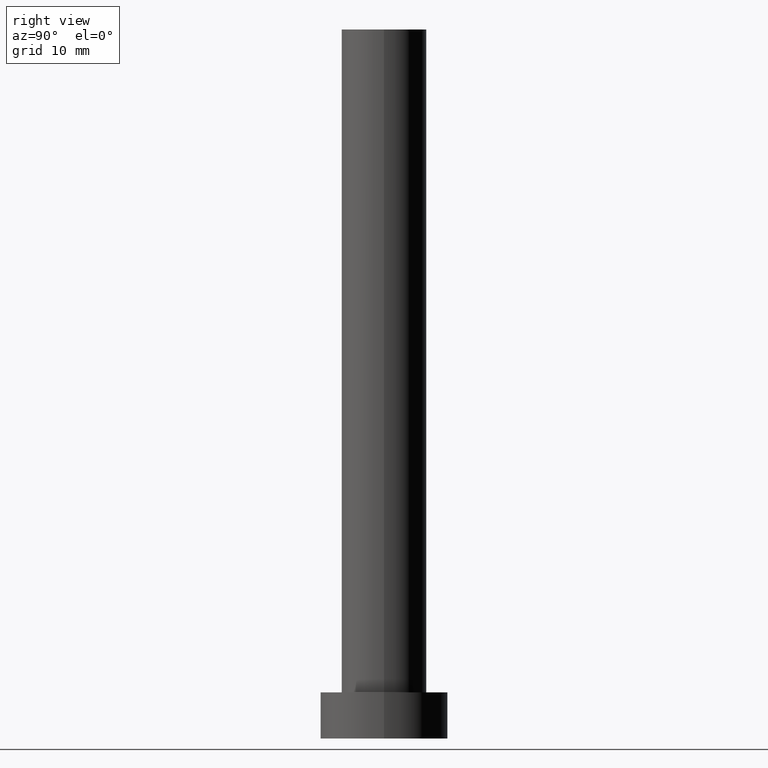
[diagram: clean part render]
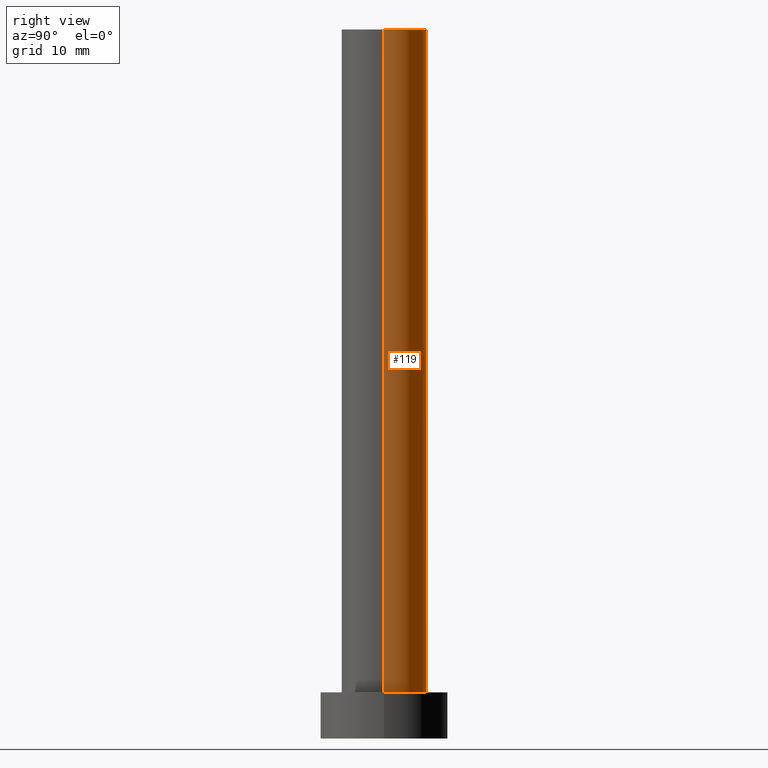
[diagram: same view with one face highlighted and labeled with its STEP entity id]
A machine part, right view. The second image highlights one B-rep face of the part: STEP entity #119.
In plain terms, the highlighted cylindrical surface (partial cylindrical patch) has radius 6 mm, axis along (-0, -0, -1).
Its self-contained STEP definition (entity closure, byte-faithful):
#5 = CARTESIAN_POINT ( 'NONE',  ( 0.000000000000000000, 0.000000000000000000, 100.0000000000000000 ) ) ;
#9 = CIRCLE ( 'NONE', #106, 6.000000000000000888 ) ;
#14 = CARTESIAN_POINT ( 'NONE',  ( 0.000000000000000000, 0.000000000000000000, 100.0000000000000000 ) ) ;
#18 = ORIENTED_EDGE ( 'NONE', *, *, #69, .T. ) ;
#37 = DIRECTION ( 'NONE',  ( -0.000000000000000000, -0.000000000000000000, -1.000000000000000000 ) ) ;
#39 = DIRECTION ( 'NONE',  ( -0.000000000000000000, -0.000000000000000000, -1.000000000000000000 ) ) ;
#43 = CARTESIAN_POINT ( 'NONE',  ( -6.000000000000000888, 0.000000000000000000, 6.500000000000000000 ) ) ;
#46 = CARTESIAN_POINT ( 'NONE',  ( -6.000000000000000888, 0.000000000000000000, 100.0000000000000000 ) ) ;
#52 = VECTOR ( 'NONE', #101, 1000.000000000000000 ) ;
#64 = ORIENTED_EDGE ( 'NONE', *, *, #143, .T. ) ;
#67 = CARTESIAN_POINT ( 'NONE',  ( 6.000000000000000888, 7.347880794884120722E-16, 100.0000000000000000 ) ) ;
#69 = EDGE_CURVE ( 'NONE', #159, #254, #210, .T. ) ;
#78 = CARTESIAN_POINT ( 'NONE',  ( 0.000000000000000000, 0.000000000000000000, 6.500000000000000000 ) ) ;
#80 = FACE_OUTER_BOUND ( 'NONE', #198, .T. ) ;
#85 = CIRCLE ( 'NONE', #166, 6.000000000000000888 ) ;
#89 = CARTESIAN_POINT ( 'NONE',  ( 6.000000000000000888, 7.347880794884120722E-16, 6.500000000000000000 ) ) ;
#96 = DIRECTION ( 'NONE',  ( -1.000000000000000000, 0.000000000000000000, 0.000000000000000000 ) ) ;
#101 = DIRECTION ( 'NONE',  ( -0.000000000000000000, -0.000000000000000000, -1.000000000000000000 ) ) ;
#106 = AXIS2_PLACEMENT_3D ( 'NONE', #78, #151, #152 ) ;
#119 = ADVANCED_FACE ( 'NONE', ( #80 ), #186, .T. ) ;
#135 = VECTOR ( 'NONE', #37, 1000.000000000000000 ) ;
#136 = LINE ( 'NONE', #46, #52 ) ;
#138 = DIRECTION ( 'NONE',  ( 1.000000000000000000, 0.000000000000000000, 0.000000000000000000 ) ) ;
#139 = VERTEX_POINT ( 'NONE', #164 ) ;
#143 = EDGE_CURVE ( 'NONE', #254, #200, #9, .T. ) ;
#147 = ORIENTED_EDGE ( 'NONE', *, *, #222, .F. ) ;
#151 = DIRECTION ( 'NONE',  ( 0.000000000000000000, 0.000000000000000000, 1.000000000000000000 ) ) ;
#152 = DIRECTION ( 'NONE',  ( 1.000000000000000000, 0.000000000000000000, 0.000000000000000000 ) ) ;
#158 = DIRECTION ( 'NONE',  ( 0.000000000000000000, 0.000000000000000000, 1.000000000000000000 ) ) ;
#159 = VERTEX_POINT ( 'NONE', #67 ) ;
#164 = CARTESIAN_POINT ( 'NONE',  ( -6.000000000000000888, 0.000000000000000000, 100.0000000000000000 ) ) ;
#166 = AXIS2_PLACEMENT_3D ( 'NONE', #5, #158, #138 ) ;
#186 = CYLINDRICAL_SURFACE ( 'NONE', #220, 6.000000000000000888 ) ;
#198 = EDGE_LOOP ( 'NONE', ( #243, #18, #64, #147 ) ) ;
#200 = VERTEX_POINT ( 'NONE', #43 ) ;
#209 = CARTESIAN_POINT ( 'NONE',  ( 6.000000000000000888, 7.347880794884120722E-16, 100.0000000000000000 ) ) ;
#210 = LINE ( 'NONE', #209, #135 ) ;
#220 = AXIS2_PLACEMENT_3D ( 'NONE', #14, #39, #96 ) ;
#222 = EDGE_CURVE ( 'NONE', #139, #200, #136, .T. ) ;
#243 = ORIENTED_EDGE ( 'NONE', *, *, #251, .F. ) ;
#251 = EDGE_CURVE ( 'NONE', #159, #139, #85, .T. ) ;
#254 = VERTEX_POINT ( 'NONE', #89 ) ;